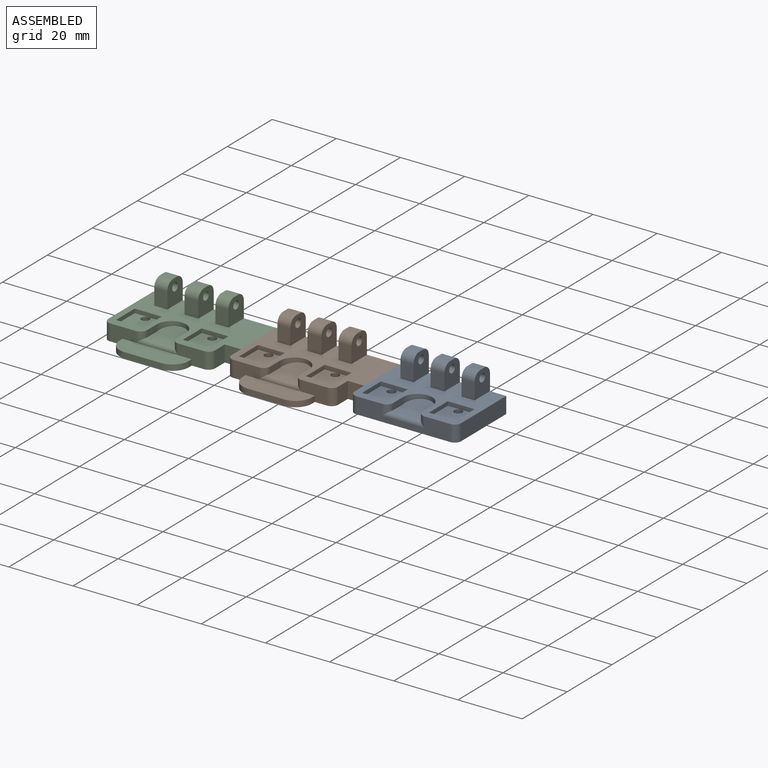
[diagram: assembled view]
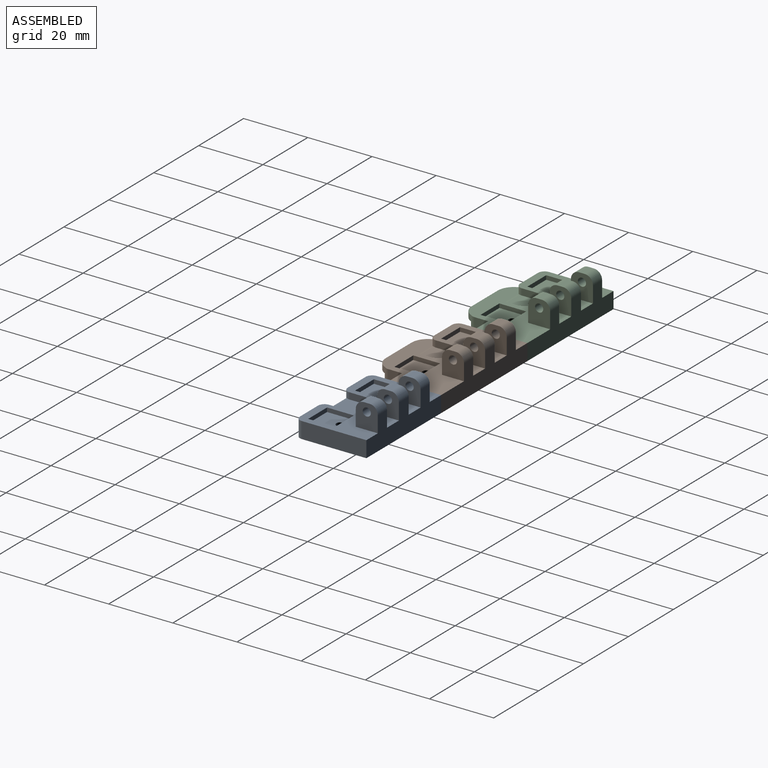
[diagram: assembled view, second angle]
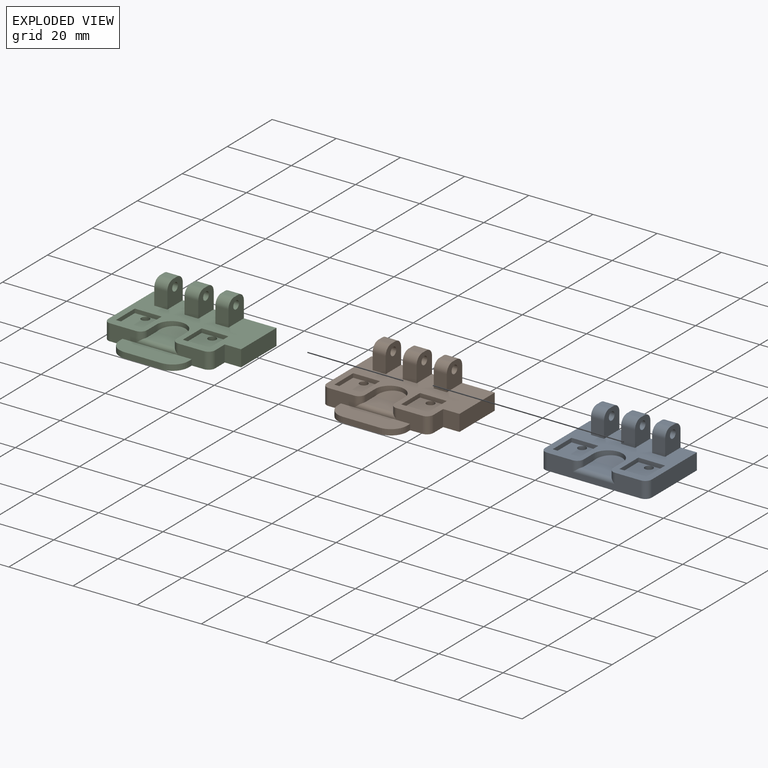
[diagram: exploded view]
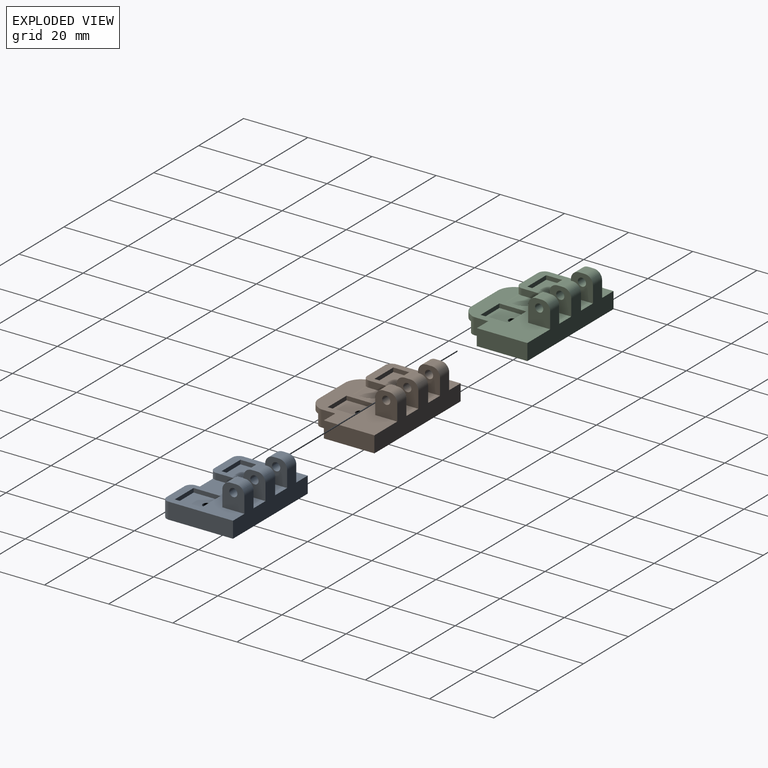
[diagram: exploded view, second angle]
ASSEMBLY  parts=3 mates=2
PART A: 49 faces, bbox 33.3x22.1x12.7 mm
  f0: cylinder r=4.57mm len=9.14mm, axis (0,0,1), area 22.2mm2, adj f2,f29,f30,f48
  f1: plane 9.44x5.08mm, normal (0,0,1), area 46.5mm2, adj f29,f30,f41,f42,f47,f48
  f2: plane 33.27x22.1mm, normal (0,0,1), area 415mm2, adj f0,f3,f4,f5,f9,f10,f11,f12
  f3: plane 5.08x4.06mm, normal (0,-1,0), area 20.6mm2, adj f2,f14,f19,f20
  f4: plane 5.08x4.06mm, normal (0,-1,0), area 20.6mm2, adj f2,f17,f18,f24
  f5: plane 5.08x4.32mm, normal (0,-1,0), area 21.9mm2, adj f2,f15,f16,f21
  f6: plane 4.06x1.78mm, normal (0,0,1), area 7.2mm2, adj f14,f19,f20,f22
  f7: plane 4.06x1.78mm, normal (0,0,1), area 7.2mm2, adj f17,f18,f24,f25
  f8: plane 4.32x1.78mm, normal (0,0,1), area 7.7mm2, adj f15,f16,f21,f23
  f9: plane 33.27x10.16mm, normal (0,1,0), area 232.3mm2, adj f2,f10,f12,f13,f14,f15,f16,f17
  f10: plane 20.07x5.08mm, normal (-1,0,0), area 101.9mm2, adj f2,f9,f13,f43
  f11: plane 29.21x5.08mm, normal (0,-1,0), area 104.8mm2, adj f2,f13,f41,f42,f43,f44,f47
  f12: plane 20.07x5.08mm, normal (1,0,0), area 101.9mm2, adj f2,f9,f13,f44
  f13: plane 33.27x22.1mm, normal (0,0,-1), area 723.4mm2, adj f9,f10,f11,f12,f43,f44,f45,f46
  f14: plane 7.62x6.86mm, normal (1,0,0), area 44.4mm2, adj f2,f3,f6,f9,f20,f22,f26
  f15: plane 7.62x6.86mm, normal (-1,0,0), area 44.4mm2, adj f2,f5,f8,f9,f21,f23,f28
  f16: plane 7.62x6.86mm, normal (1,0,0), area 44.4mm2, adj f2,f5,f8,f9,f21,f23,f28
  f17: plane 7.62x6.86mm, normal (-1,0,0), area 44.4mm2, adj f2,f4,f7,f9,f24,f25,f27
  f18: plane 7.62x6.86mm, normal (1,0,0), area 44.4mm2, adj f2,f4,f7,f9,f24,f25,f27
  f19: plane 7.62x6.86mm, normal (-1,0,0), area 44.4mm2, adj f2,f3,f6,f9,f20,f22,f26
  f20: cylinder r=2.54mm len=4.06mm, axis (1,0,0), area 16.2mm2, adj f3,f6,f14,f19
  f21: cylinder r=2.54mm len=4.32mm, axis (1,0,0), area 17.2mm2, adj f5,f8,f15,f16
  f22: cylinder r=2.54mm len=4.06mm, axis (-1,0,0), area 16.2mm2, adj f6,f9,f14,f19
  f23: cylinder r=2.54mm len=4.32mm, axis (-1,0,0), area 17.2mm2, adj f8,f9,f15,f16
  f24: cylinder r=2.54mm len=4.06mm, axis (1,0,0), area 16.2mm2, adj f4,f7,f17,f18
  f25: cylinder r=2.54mm len=4.06mm, axis (-1,0,0), area 16.2mm2, adj f7,f9,f17,f18
  f26: cylinder r=1.27mm len=4.06mm, axis (1,0,0), area 32.4mm2, adj f14,f19
  f27: cylinder r=1.27mm len=4.06mm, axis (1,0,0), area 32.4mm2, adj f17,f18
  f28: cylinder r=1.27mm len=4.32mm, axis (1,0,0), area 34.5mm2, adj f15,f16
  f29: plane 4.32x2.03mm, normal (-1,0,0), area 8.8mm2, adj f0,f1,f2,f41
  f30: plane 4.32x2.03mm, normal (1,0,0), area 8.8mm2, adj f0,f1,f2,f42
  f31: plane 8.38x1.27mm, normal (0,-1,0), area 10.6mm2, adj f2,f32,f34,f35
  f32: plane 8.38x1.27mm, normal (1,0,0), area 10.6mm2, adj f2,f31,f33,f35
  f33: plane 8.38x1.27mm, normal (0,1,0), area 10.6mm2, adj f2,f32,f34,f35
  f34: plane 8.38x1.27mm, normal (-1,0,0), area 10.6mm2, adj f2,f31,f33,f35
  f35: plane 8.38x8.38mm, normal (0,0,1), area 65.2mm2, adj f31,f32,f33,f34,f46
  f36: plane 8.38x1.27mm, normal (0,-1,0), area 10.6mm2, adj f2,f37,f39,f40
  f37: plane 8.38x1.27mm, normal (1,0,0), area 10.6mm2, adj f2,f36,f38,f40
  f38: plane 8.38x1.27mm, normal (0,1,0), area 10.6mm2, adj f2,f37,f39,f40
  f39: plane 8.38x1.27mm, normal (-1,0,0), area 10.6mm2, adj f2,f36,f38,f40
  f40: plane 8.38x8.38mm, normal (0,0,1), area 65.2mm2, adj f36,f37,f38,f39,f45
  f41: cylinder r=2.03mm len=3.3mm, axis (0,0,1), area 7.6mm2, adj f1,f2,f11,f29,f47
  f42: cylinder r=2.03mm len=3.3mm, axis (0,0,-1), area 7.6mm2, adj f1,f2,f11,f30,f47
  f43: cylinder r=2.03mm len=5.08mm, axis (0,0,1), area 16.2mm2, adj f2,f10,f11,f13
  f44: cylinder r=2.03mm len=5.08mm, axis (0,0,-1), area 16.2mm2, adj f2,f11,f12,f13
  f45: cylinder r=1.27mm len=3.81mm, axis (0,0,1), area 30.4mm2, adj f13,f40
  f46: cylinder r=1.27mm len=3.81mm, axis (0,0,1), area 30.4mm2, adj f13,f35
  f47: cylinder r=1.27mm len=13.21mm, axis (-1,0,0), area 22mm2, adj f1,f11,f41,f42
  f48: plane 9.14x4.57mm, normal (0,-0.16,0.99), area 33.3mm2, adj f0,f1
PART B: 58 faces, bbox 38.4x28.4x12.7 mm
  f0: plane 8x5.08mm, normal (0,-1,0), area 33.2mm2, adj f3,f14,f42,f45,f52,f54
  f1: cylinder r=4.57mm len=9.14mm, axis (0,0,1), area 22.2mm2, adj f3,f30,f31,f51
  f2: plane 9.44x5.08mm, normal (0,0,1), area 46.5mm2, adj f30,f31,f42,f43,f48,f51
  f3: plane 38.35x22.1mm, normal (0,0,1), area 495mm2, adj f0,f1,f4,f5,f6,f10,f11,f12
  f4: plane 5.08x4.06mm, normal (0,-1,0), area 20.6mm2, adj f3,f15,f20,f21
  f5: plane 5.08x4.06mm, normal (0,-1,0), area 20.6mm2, adj f3,f18,f19,f25
  f6: plane 5.08x4.32mm, normal (0,-1,0), area 21.9mm2, adj f3,f16,f17,f22
  f7: plane 4.06x1.78mm, normal (0,0,1), area 7.2mm2, adj f15,f20,f21,f23
  f8: plane 4.06x1.78mm, normal (0,0,1), area 7.2mm2, adj f18,f19,f25,f26
  f9: plane 4.32x1.78mm, normal (0,0,1), area 7.7mm2, adj f16,f17,f22,f24
  f10: plane 38.35x10.16mm, normal (0,1,0), area 258.1mm2, adj f3,f11,f14,f15,f16,f17,f18,f19
  f11: plane 20.07x5.08mm, normal (-1,0,0), area 101.9mm2, adj f3,f10,f14,f44
  f12: plane 8x5.08mm, normal (0,-1,0), area 33.2mm2, adj f3,f14,f43,f44,f52,f53
  f13: plane 5.08x4.32mm, normal (1,0,0), area 21.9mm2, adj f3,f14,f45,f49
  f14: plane 38.35x28.45mm, normal (0,0,-1), area 929.4mm2, adj f0,f10,f11,f12,f13,f44,f45,f46
  f15: plane 7.62x6.86mm, normal (1,0,0), area 44.4mm2, adj f3,f4,f7,f10,f21,f23,f27
  f16: plane 7.62x6.86mm, normal (-1,0,0), area 44.4mm2, adj f3,f6,f9,f10,f22,f24,f29
  f17: plane 7.62x6.86mm, normal (1,0,0), area 44.4mm2, adj f3,f6,f9,f10,f22,f24,f29
  f18: plane 7.62x6.86mm, normal (-1,0,0), area 44.4mm2, adj f3,f5,f8,f10,f25,f26,f28
  f19: plane 7.62x6.86mm, normal (1,0,0), area 44.4mm2, adj f3,f5,f8,f10,f25,f26,f28
  f20: plane 7.62x6.86mm, normal (-1,0,0), area 44.4mm2, adj f3,f4,f7,f10,f21,f23,f27
  f21: cylinder r=2.54mm len=4.06mm, axis (1,0,0), area 16.2mm2, adj f4,f7,f15,f20
  f22: cylinder r=2.54mm len=4.32mm, axis (1,0,0), area 17.2mm2, adj f6,f9,f16,f17
  f23: cylinder r=2.54mm len=4.06mm, axis (-1,0,0), area 16.2mm2, adj f7,f10,f15,f20
  f24: cylinder r=2.54mm len=4.32mm, axis (-1,0,0), area 17.2mm2, adj f9,f10,f16,f17
  f25: cylinder r=2.54mm len=4.06mm, axis (1,0,0), area 16.2mm2, adj f5,f8,f18,f19
  f26: cylinder r=2.54mm len=4.06mm, axis (-1,0,0), area 16.2mm2, adj f8,f10,f18,f19
  f27: cylinder r=1.27mm len=4.06mm, axis (1,0,0), area 32.4mm2, adj f15,f20
  f28: cylinder r=1.27mm len=4.06mm, axis (1,0,0), area 32.4mm2, adj f18,f19
  f29: cylinder r=1.27mm len=4.32mm, axis (1,0,0), area 34.5mm2, adj f16,f17
  f30: plane 4.32x2.03mm, normal (-1,0,0), area 8.8mm2, adj f1,f2,f3,f42
  f31: plane 4.32x2.03mm, normal (1,0,0), area 8.8mm2, adj f1,f2,f3,f43
  f32: plane 8.38x1.27mm, normal (0,-1,0), area 10.6mm2, adj f3,f33,f35,f36
  f33: plane 8.38x1.27mm, normal (1,0,0), area 10.6mm2, adj f3,f32,f34,f36
  f34: plane 8.38x1.27mm, normal (0,1,0), area 10.6mm2, adj f3,f33,f35,f36
  f35: plane 8.38x1.27mm, normal (-1,0,0), area 10.6mm2, adj f3,f32,f34,f36
  f36: plane 8.38x8.38mm, normal (0,0,1), area 65.2mm2, adj f32,f33,f34,f35,f47
  f37: plane 8.38x1.27mm, normal (0,-1,0), area 10.6mm2, adj f3,f38,f40,f41
  f38: plane 8.38x1.27mm, normal (1,0,0), area 10.6mm2, adj f3,f37,f39,f41
  f39: plane 8.38x1.27mm, normal (0,1,0), area 10.6mm2, adj f3,f38,f40,f41
  f40: plane 8.38x1.27mm, normal (-1,0,0), area 10.6mm2, adj f3,f37,f39,f41
  f41: plane 8.38x8.38mm, normal (0,0,1), area 65.2mm2, adj f37,f38,f39,f40,f46
  f42: cylinder r=2.03mm len=3.3mm, axis (0,0,1), area 7.6mm2, adj f0,f2,f3,f30,f48
  f43: cylinder r=2.03mm len=3.3mm, axis (0,0,-1), area 7.6mm2, adj f2,f3,f12,f31,f48
  f44: cylinder r=2.03mm len=5.08mm, axis (0,0,1), area 16.2mm2, adj f3,f11,f12,f14
  f45: cylinder r=2.03mm len=5.08mm, axis (0,0,-1), area 16.2mm2, adj f0,f3,f13,f14
  f46: cylinder r=1.27mm len=3.81mm, axis (0,0,1), area 30.4mm2, adj f14,f41
  f47: cylinder r=1.27mm len=3.81mm, axis (0,0,1), area 30.4mm2, adj f14,f36
  f48: cylinder r=1.27mm len=13.21mm, axis (-1,0,0), area 22mm2, adj f2,f42,f43,f52
  f49: plane 5.08x5.08mm, normal (0,-1,0), area 25.8mm2, adj f3,f13,f14,f50
  f50: plane 15.75x5.08mm, normal (1,0,0), area 80mm2, adj f3,f10,f14,f49
  f51: plane 9.14x4.57mm, normal (0,-0.16,0.99), area 33.3mm2, adj f1,f2
  f52: plane 21.59x6.35mm, normal (0,0,1), area 126mm2, adj f0,f12,f48,f53,f54,f55,f56,f57
  f53: plane 1.78x1.27mm, normal (-1,0,0), area 2.3mm2, adj f12,f14,f52,f56
  f54: plane 1.78x1.27mm, normal (1,0,0), area 2.3mm2, adj f0,f14,f52,f57
  f55: plane 11.43x1.78mm, normal (0,-1,0), area 20.3mm2, adj f14,f52,f56,f57
  f56: cylinder r=5.08mm len=5.08mm, axis (0,0,1), area 14.2mm2, adj f14,f52,f53,f55
  f57: cylinder r=5.08mm len=5.08mm, axis (0,0,-1), area 14.2mm2, adj f14,f52,f54,f55
PART C: same geometry as B
PLACE A t=(59.87,23.43,-20.89)mm
PLACE B t=(21.52,23.43,-20.89)mm
PLACE C t=(-16.84,23.43,-20.89)mm
MATE fastened C.f50 <-> B.f11  axis (1,0,0) through (21.52,45.52,-20.89)mm
MATE fastened B.f50 <-> A.f10  axis (1,0,0) through (59.87,45.52,-20.89)mm
